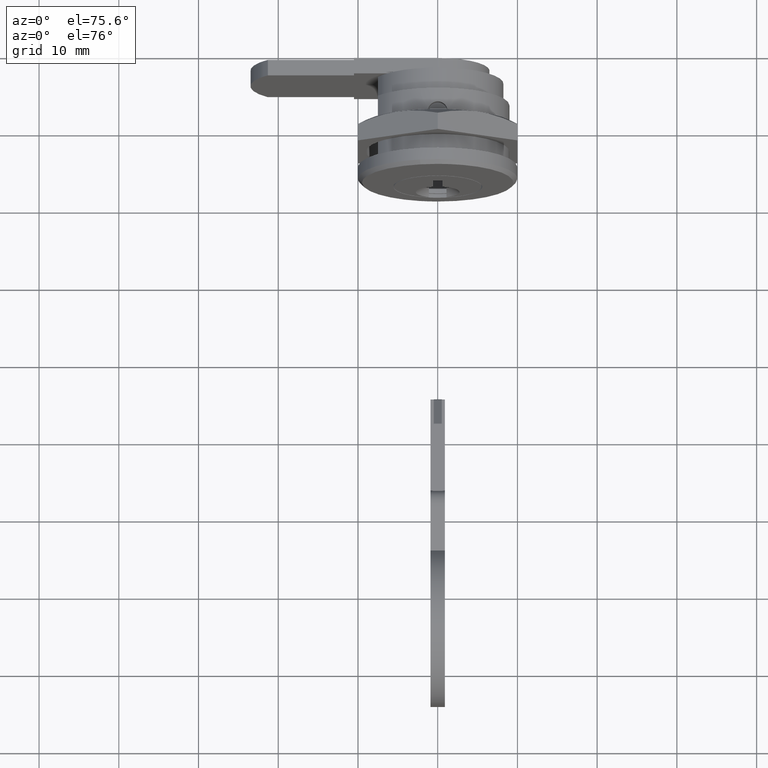
[diagram: clean part render]
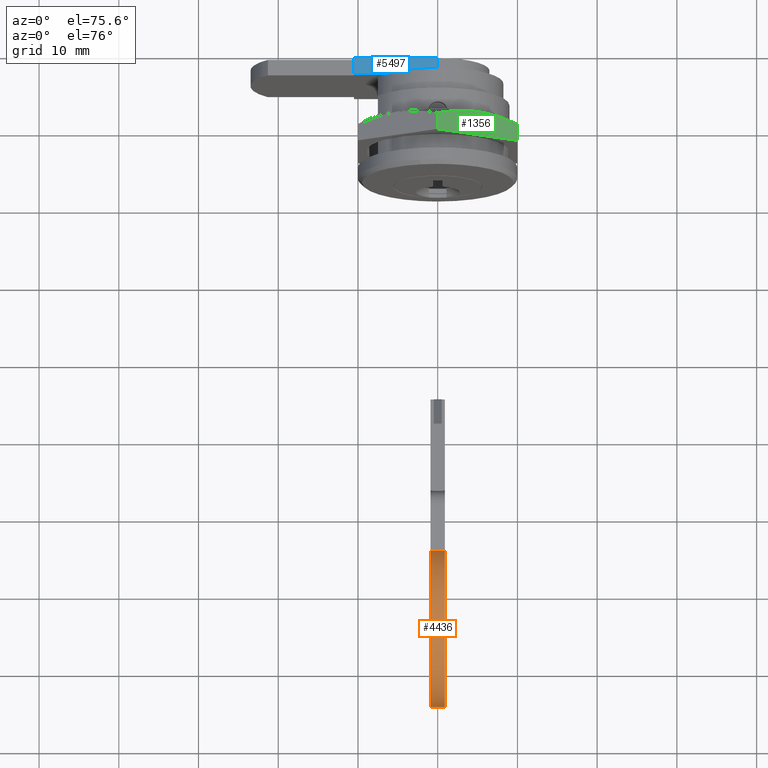
[diagram: same view with three faces highlighted in distinct colors, each labeled with its STEP entity id]
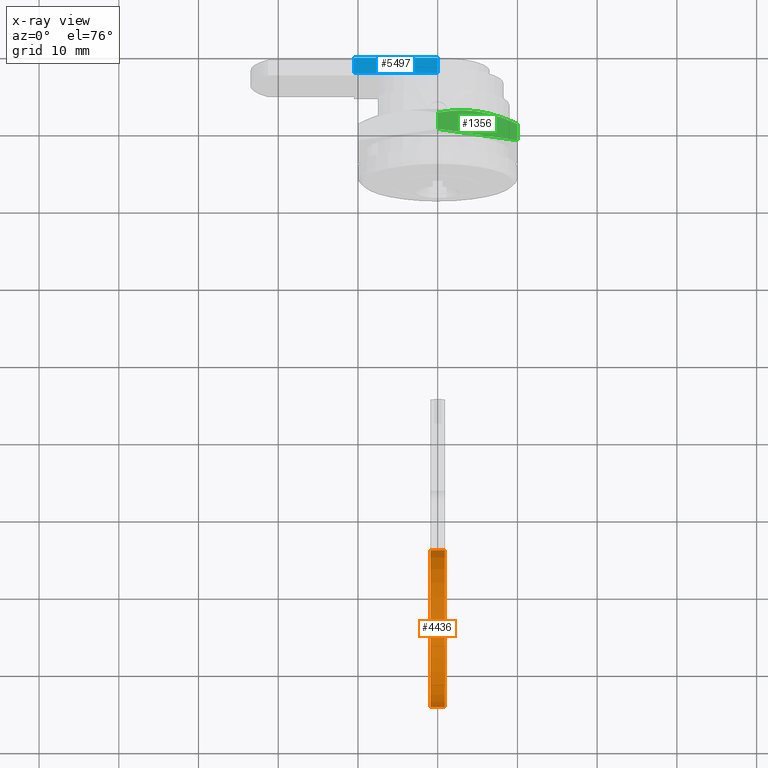
[diagram: x-ray of the same camera — body ghosted, the three highlighted faces saturated]
A machine part, auxiliary view with three faces highlighted in distinct colors.
The next image is the same camera in x-ray (body ghosted, the three faces saturated) — at least one of them is partly hidden behind the body in this view.
Their STEP definitions:

[orange] entity #4436 — the highlighted face is a freeform B-spline surface patch.
#4337=CARTESIAN_POINT('',(-47.006107985830397,0.900000000000012,-7.0));
#4338=VERTEX_POINT('',#4337);
#4345=CARTESIAN_POINT('',(-47.006107985830397,-0.900000000000012,-7.0));
#4346=VERTEX_POINT('',#4345);
#4352=CARTESIAN_POINT('',(-47.006107985830397,-0.900000000000012,-7.0));
#4353=CARTESIAN_POINT('',(-47.006107985830397,0.900000000000012,-7.0));
#4354=QUASI_UNIFORM_CURVE('',1,(#4352,#4353),.UNSPECIFIED.,.F.,.U.);
#4355=EDGE_CURVE('',#4346,#4338,#4354,.T.);
#4360=CARTESIAN_POINT('',(-47.841950198558003,-0.945000000000013,0.924248252659372));
#4361=CARTESIAN_POINT('',(-47.841950198558003,0.946125000000013,0.924248252659372));
#4362=CARTESIAN_POINT('',(-51.901187206023351,-0.945000000000013,8.098901039762648));
#4363=CARTESIAN_POINT('',(-51.901187206023351,0.946125000000013,8.098901039762648));
#4364=CARTESIAN_POINT('',(-59.718560349032231,-0.945000000000013,5.483231939660620));
#4365=CARTESIAN_POINT('',(-59.718560349032231,0.946125000000013,5.483231939660620));
#4366=CARTESIAN_POINT('',(-67.535933492041124,-0.945000000000013,2.867562839558594));
#4367=CARTESIAN_POINT('',(-67.535933492041124,0.946125000000013,2.867562839558594));
#4368=CARTESIAN_POINT('',(-66.459946716377985,-0.945000000000013,-5.305276334000567));
#4369=CARTESIAN_POINT('',(-66.459946716377985,0.946125000000013,-5.305276334000567));
#4370=CARTESIAN_POINT('',(-65.383959940714846,-0.945000000000013,-13.478115507559737));
#4371=CARTESIAN_POINT('',(-65.383959940714846,0.946125000000013,-13.478115507559737));
#4372=CARTESIAN_POINT('',(-57.155970886300487,-0.945000000000013,-13.981348871619501));
#4373=CARTESIAN_POINT('',(-57.155970886300487,0.946125000000013,-13.981348871619501));
#4374=CARTESIAN_POINT('',(-48.927981831886150,-0.945000000000013,-14.484582235679236));
#4375=CARTESIAN_POINT('',(-48.927981831886150,0.946125000000013,-14.484582235679236));
#4376=CARTESIAN_POINT('',(-46.864019956665267,-0.945000000000013,-6.503785967392481));
#4377=CARTESIAN_POINT('',(-46.864019956665267,0.946125000000013,-6.503785967392481));
#4385=(BOUNDED_SURFACE()B_SPLINE_SURFACE(1,2,((#4360,#4362,#4364,#4366,#4368,#4370,#4372,#4374,#4376),(#4361,#4363,#4365,#4367,#4369,#4371,#4373,#4375,#4377)),.UNSPECIFIED.,.F.,.F.,.U.)B_SPLINE_SURFACE_WITH_KNOTS((2,2),(3,2,2,2,3),(0.0,1.0),(0.0,14.361467463077281,28.722934926154569,43.084402389231862,57.445869852309137),.UNSPECIFIED.)GEOMETRIC_REPRESENTATION_ITEM()RATIONAL_B_SPLINE_SURFACE(((1.0,0.771624583387720,1.0,0.771624583387720,1.0,0.771624583387720,1.0,0.771624583387720,1.0),(1.0,0.771624583387720,1.0,0.771624583387720,1.0,0.771624583387720,1.0,0.771624583387720,1.0)))REPRESENTATION_ITEM('')SURFACE());
#4386=CARTESIAN_POINT('',(-47.885253230244800,0.900000000000012,1.000012588678852));
#4387=VERTEX_POINT('',#4386);
#4388=CARTESIAN_POINT('',(-47.885253230244892,0.900000000000012,1.000012588678790));
#4389=CARTESIAN_POINT('',(-51.943987973449488,0.900000000000012,8.029923779046071));
#4390=CARTESIAN_POINT('',(-59.658179835192833,0.900000000000012,5.503221782300146));
#4391=CARTESIAN_POINT('',(-67.372371696936185,0.900000000000012,2.976519785554221));
#4392=CARTESIAN_POINT('',(-66.485659119505456,0.900000000000012,-5.092353733418140));
#4393=CARTESIAN_POINT('',(-65.598946542074728,0.900000000000012,-13.161227252390496));
#4394=CARTESIAN_POINT('',(-57.520144621275243,0.900000000000012,-13.952390057781059));
#4395=CARTESIAN_POINT('',(-49.441342700475730,0.900000000000012,-14.743552863171628));
#4396=CARTESIAN_POINT('',(-47.006107985830532,0.900000000000012,-6.999999999999972));
#4404=(BOUNDED_CURVE()B_SPLINE_CURVE(2,(#4388,#4389,#4390,#4391,#4392,#4393,#4394,#4395,#4396),.UNSPECIFIED.,.F.,.U.)B_SPLINE_CURVE_WITH_KNOTS((3,2,2,2,3),(0.0,0.250000000000000,0.500000000000000,0.750000000000000,1.0),.UNSPECIFIED.)CURVE()GEOMETRIC_REPRESENTATION_ITEM()RATIONAL_B_SPLINE_CURVE((1.0,0.776400840598774,1.0,0.776400840598774,1.0,0.776400840598774,1.0,0.776400840598774,1.0))REPRESENTATION_ITEM(''));
#4405=EDGE_CURVE('',#4387,#4338,#4404,.T.);
#4406=ORIENTED_EDGE('',*,*,#4405,.T.);
#4407=ORIENTED_EDGE('',*,*,#4355,.F.);
#4408=CARTESIAN_POINT('',(-47.885253230244800,-0.900000000000012,1.000012588678852));
#4409=VERTEX_POINT('',#4408);
#4410=CARTESIAN_POINT('',(-47.885253230244892,-0.900000000000012,1.000012588678790));
#4411=CARTESIAN_POINT('',(-51.943987973449488,-0.900000000000012,8.029923779046071));
#4412=CARTESIAN_POINT('',(-59.658179835192833,-0.900000000000012,5.503221782300146));
#4413=CARTESIAN_POINT('',(-67.372371696936185,-0.900000000000012,2.976519785554221));
#4414=CARTESIAN_POINT('',(-66.485659119505456,-0.900000000000012,-5.092353733418140));
#4415=CARTESIAN_POINT('',(-65.598946542074728,-0.900000000000012,-13.161227252390496));
#4416=CARTESIAN_POINT('',(-57.520144621275243,-0.900000000000012,-13.952390057781059));
#4417=CARTESIAN_POINT('',(-49.441342700475730,-0.900000000000012,-14.743552863171628));
#4418=CARTESIAN_POINT('',(-47.006107985830532,-0.900000000000012,-6.999999999999972));
#4426=(BOUNDED_CURVE()B_SPLINE_CURVE(2,(#4410,#4411,#4412,#4413,#4414,#4415,#4416,#4417,#4418),.UNSPECIFIED.,.F.,.U.)B_SPLINE_CURVE_WITH_KNOTS((3,2,2,2,3),(0.0,0.250000000000000,0.500000000000000,0.750000000000000,1.0),.UNSPECIFIED.)CURVE()GEOMETRIC_REPRESENTATION_ITEM()RATIONAL_B_SPLINE_CURVE((1.0,0.776400840598774,1.0,0.776400840598774,1.0,0.776400840598774,1.0,0.776400840598774,1.0))REPRESENTATION_ITEM(''));
#4427=EDGE_CURVE('',#4409,#4346,#4426,.T.);
#4428=ORIENTED_EDGE('',*,*,#4427,.F.);
#4429=CARTESIAN_POINT('',(-47.885253230244800,-0.900000000000012,1.000012588678852));
#4430=CARTESIAN_POINT('',(-47.885253230244800,0.900000000000012,1.000012588678852));
#4431=QUASI_UNIFORM_CURVE('',1,(#4429,#4430),.UNSPECIFIED.,.F.,.U.);
#4432=EDGE_CURVE('',#4409,#4387,#4431,.T.);
#4433=ORIENTED_EDGE('',*,*,#4432,.T.);
#4434=EDGE_LOOP('',(#4406,#4407,#4428,#4433));
#4435=FACE_OUTER_BOUND('',#4434,.T.);
#4436=ADVANCED_FACE('',(#4435),#4385,.T.);

[blue] entity #5497 — the highlighted face is a freeform B-spline surface patch.
#5427=CARTESIAN_POINT('',(13.000000000000121,0.0,4.499999999999900));
#5428=VERTEX_POINT('',#5427);
#5445=CARTESIAN_POINT('',(15.0,0.0,4.499999999999900));
#5446=VERTEX_POINT('',#5445);
#5462=CARTESIAN_POINT('',(15.0,0.0,4.499999999999900));
#5463=CARTESIAN_POINT('',(13.000000000000121,0.0,4.499999999999900));
#5464=QUASI_UNIFORM_CURVE('',1,(#5462,#5463),.UNSPECIFIED.,.F.,.U.);
#5465=EDGE_CURVE('',#5446,#5428,#5464,.T.);
#5470=CARTESIAN_POINT('',(12.900100003876510,-0.524474979648963,4.499999999999900));
#5471=CARTESIAN_POINT('',(12.900100003876510,11.024475261280910,4.499999999999900));
#5472=CARTESIAN_POINT('',(15.099900049767790,-0.524474979648963,4.499999999999900));
#5473=CARTESIAN_POINT('',(15.099900049767790,11.024475261280910,4.499999999999900));
#5474=B_SPLINE_SURFACE_WITH_KNOTS('',1,1,((#5470,#5472),(#5471,#5473)),.UNSPECIFIED.,.F.,.F.,.U.,(2,2),(2,2),(0.0,11.548950240929869),(0.0,2.199800045891276),.UNSPECIFIED.);
#5475=CARTESIAN_POINT('',(13.000000000000121,10.500000000000000,4.499999999999900));
#5476=VERTEX_POINT('',#5475);
#5477=CARTESIAN_POINT('',(13.000000000000121,10.500000000000000,4.499999999999900));
#5478=CARTESIAN_POINT('',(13.000000000000121,0.0,4.499999999999900));
#5479=QUASI_UNIFORM_CURVE('',1,(#5477,#5478),.UNSPECIFIED.,.F.,.U.);
#5480=EDGE_CURVE('',#5476,#5428,#5479,.T.);
#5481=ORIENTED_EDGE('',*,*,#5480,.T.);
#5482=ORIENTED_EDGE('',*,*,#5465,.F.);
#5483=CARTESIAN_POINT('',(15.0,10.500000000000000,4.499999999999900));
#5484=VERTEX_POINT('',#5483);
#5485=CARTESIAN_POINT('',(15.0,10.500000000000000,4.499999999999900));
#5486=CARTESIAN_POINT('',(15.0,0.0,4.499999999999900));
#5487=QUASI_UNIFORM_CURVE('',1,(#5485,#5486),.UNSPECIFIED.,.F.,.U.);
#5488=EDGE_CURVE('',#5484,#5446,#5487,.T.);
#5489=ORIENTED_EDGE('',*,*,#5488,.F.);
#5490=CARTESIAN_POINT('',(15.0,10.500000000000000,4.499999999999900));
#5491=CARTESIAN_POINT('',(13.000000000000121,10.500000000000000,4.499999999999900));
#5492=QUASI_UNIFORM_CURVE('',1,(#5490,#5491),.UNSPECIFIED.,.F.,.U.);
#5493=EDGE_CURVE('',#5484,#5476,#5492,.T.);
#5494=ORIENTED_EDGE('',*,*,#5493,.T.);
#5495=EDGE_LOOP('',(#5481,#5482,#5489,#5494));
#5496=FACE_OUTER_BOUND('',#5495,.T.);
#5497=ADVANCED_FACE('',(#5496),#5474,.F.);

[green] entity #1356 — the highlighted face is a freeform B-spline surface patch.
#1029=CARTESIAN_POINT('',(6.106999999999999,9.128313E-016,11.546999999999800));
#1030=VERTEX_POINT('',#1029);
#1031=CARTESIAN_POINT('',(6.106853352962240,-10.0,5.773999999999900));
#1032=VERTEX_POINT('',#1031);
#1033=CARTESIAN_POINT('',(6.106999999999999,9.128313E-016,11.546999999999800));
#1034=CARTESIAN_POINT('',(6.379065382005091,-0.816414261084593,11.075684047075670));
#1035=CARTESIAN_POINT('',(6.603290472287720,-1.638778275271323,10.600933301685689));
#1036=CARTESIAN_POINT('',(6.836249056628875,-2.885181238006623,9.881384871298602));
#1037=CARTESIAN_POINT('',(6.896630817690778,-3.302796847027795,9.640295380210688));
#1038=CARTESIAN_POINT('',(6.978307522938587,-4.142889174849935,9.155310079358973));
#1039=CARTESIAN_POINT('',(6.999568703805385,-4.565370092693290,8.911411845488011));
#1040=CARTESIAN_POINT('',(7.000026195156366,-5.203000856251494,8.543307605685866));
#1041=CARTESIAN_POINT('',(6.994923887261155,-5.416621130942009,8.419984621107032));
#1042=CARTESIAN_POINT('',(6.974373647813666,-5.841924295506257,8.174457104204095));
#1043=CARTESIAN_POINT('',(6.958949451866666,-6.053837324678944,8.052119712462705));
#1044=CARTESIAN_POINT('',(6.897898096128254,-6.687456632937383,7.686331285805120));
#1045=CARTESIAN_POINT('',(6.837457616646683,-7.107038176858246,7.444106860499607));
#1046=CARTESIAN_POINT('',(6.604074929564575,-8.358315450322921,6.721744490528462));
#1047=CARTESIAN_POINT('',(6.379274237496815,-9.182572904864907,6.245900662021380));
#1048=CARTESIAN_POINT('',(6.106853352962240,-10.0,5.773999999999900));
#1049=B_SPLINE_CURVE_WITH_KNOTS('',3,(#1033,#1034,#1035,#1036,#1037,#1038,#1039,#1040,#1041,#1042,#1043,#1044,#1045,#1046,#1047,#1048),.UNSPECIFIED.,.F.,.U.,(4,2,2,2,2,2,2,4),(0.0,0.250000000000000,0.375000000000001,0.500000000000001,0.562500000000001,0.625000000000001,0.750000000000000,1.0),.UNSPECIFIED.);
#1050=EDGE_CURVE('',#1030,#1032,#1049,.T.);
#1258=CARTESIAN_POINT('',(4.0,0.0,11.546999999999800));
#1259=VERTEX_POINT('',#1258);
#1288=CARTESIAN_POINT('',(4.0,-10.0,5.773999999999900));
#1289=VERTEX_POINT('',#1288);
#1295=CARTESIAN_POINT('',(4.0,-10.0,5.773999999999900));
#1296=CARTESIAN_POINT('',(4.0,0.0,11.546999999999800));
#1297=QUASI_UNIFORM_CURVE('',1,(#1295,#1296),.UNSPECIFIED.,.F.,.U.);
#1298=EDGE_CURVE('',#1289,#1259,#1297,.T.);
#1337=CARTESIAN_POINT('',(3.850156159679930,0.499499980618059,11.835361338810600));
#1338=CARTESIAN_POINT('',(3.850156159679930,-10.499500248838959,5.485638506345174));
#1339=CARTESIAN_POINT('',(7.149720720270815,0.499499980618059,11.835361338810600));
#1340=CARTESIAN_POINT('',(7.149720720270815,-10.499500248838959,5.485638506345174));
#1341=B_SPLINE_SURFACE_WITH_KNOTS('',1,1,((#1337,#1339),(#1338,#1340)),.UNSPECIFIED.,.F.,.F.,.U.,(2,2),(2,2),(0.0,12.700275040200051),(0.0,3.299564560590885),.UNSPECIFIED.);
#1342=ORIENTED_EDGE('',*,*,#1050,.F.);
#1343=CARTESIAN_POINT('',(6.106999999999999,9.128313E-016,11.546999999999800));
#1344=CARTESIAN_POINT('',(4.0,0.0,11.546999999999800));
#1345=QUASI_UNIFORM_CURVE('',1,(#1343,#1344),.UNSPECIFIED.,.F.,.U.);
#1346=EDGE_CURVE('',#1030,#1259,#1345,.T.);
#1347=ORIENTED_EDGE('',*,*,#1346,.T.);
#1348=ORIENTED_EDGE('',*,*,#1298,.F.);
#1349=CARTESIAN_POINT('',(6.106853352962240,-10.0,5.773999999999900));
#1350=CARTESIAN_POINT('',(4.0,-10.0,5.773999999999900));
#1351=QUASI_UNIFORM_CURVE('',1,(#1349,#1350),.UNSPECIFIED.,.F.,.U.);
#1352=EDGE_CURVE('',#1032,#1289,#1351,.T.);
#1353=ORIENTED_EDGE('',*,*,#1352,.F.);
#1354=EDGE_LOOP('',(#1342,#1347,#1348,#1353));
#1355=FACE_OUTER_BOUND('',#1354,.T.);
#1356=ADVANCED_FACE('',(#1355),#1341,.T.);